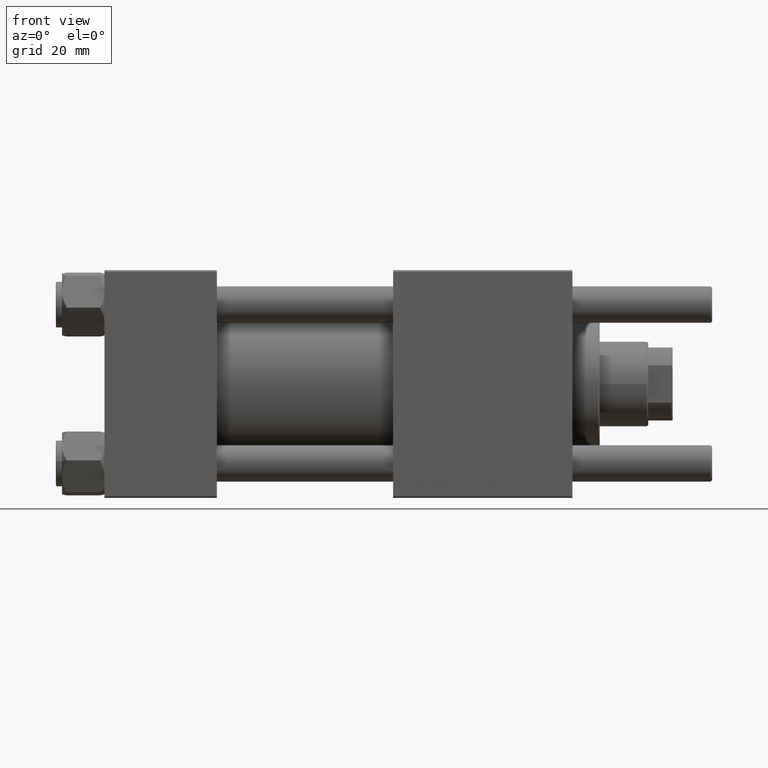
[diagram: clean part render]
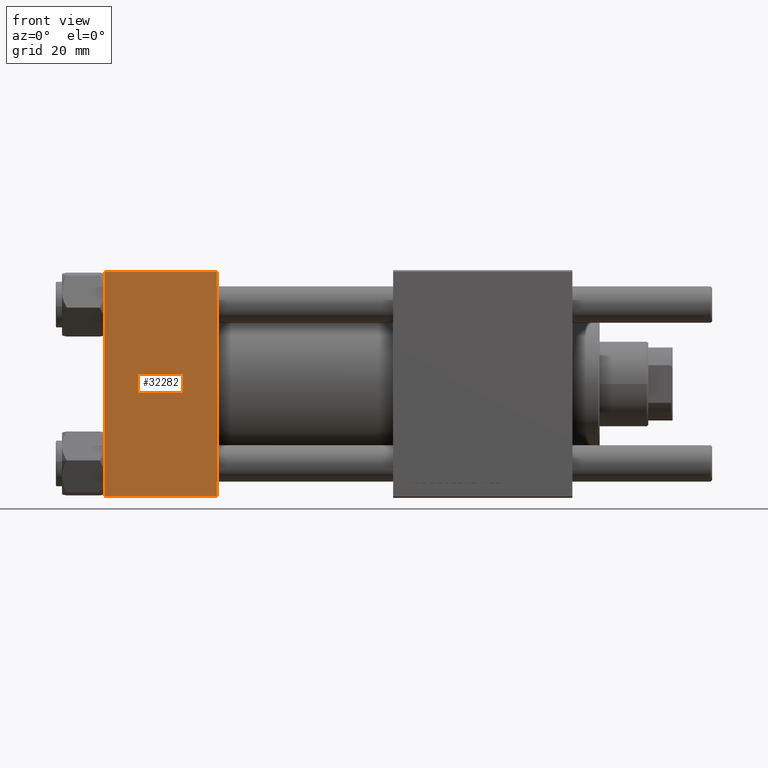
[diagram: same view with one face highlighted and labeled with its STEP entity id]
A machine part, front view. The second image highlights one B-rep face of the part: STEP entity #32282.
In plain terms, the highlighted planar face has unit normal (0, 1, 0).
Its self-contained STEP definition (entity closure, byte-faithful):
#380 = LINE ( 'NONE', #31969, #13864 ) ;
#3413 = VECTOR ( 'NONE', #16341, 1000.000000000000000 ) ;
#4068 = EDGE_CURVE ( 'NONE', #24981, #16358, #6857, .T. ) ;
#5426 = VECTOR ( 'NONE', #26121, 1000.000000000000000 ) ;
#5533 = DIRECTION ( 'NONE',  ( 0.000000000000000000, 9.251858538542971581E-17, -1.000000000000000000 ) ) ;
#6571 = PLANE ( 'NONE',  #43467 ) ;
#6857 = LINE ( 'NONE', #24975, #3413 ) ;
#6870 = DIRECTION ( 'NONE',  ( 0.000000000000000000, 9.251858538542971581E-17, -1.000000000000000000 ) ) ;
#8035 = ORIENTED_EDGE ( 'NONE', *, *, #19327, .T. ) ;
#9450 = ORIENTED_EDGE ( 'NONE', *, *, #4068, .T. ) ;
#12366 = CARTESIAN_POINT ( 'NONE',  ( 37.00000000000000000, -37.50000000000000711, 36.99999999999999289 ) ) ;
#13864 = VECTOR ( 'NONE', #5533, 1000.000000000000000 ) ;
#15196 = DIRECTION ( 'NONE',  ( 0.000000000000000000, -9.251858538542971581E-17, 1.000000000000000000 ) ) ;
#15507 = LINE ( 'NONE', #37070, #23989 ) ;
#16341 = DIRECTION ( 'NONE',  ( -1.000000000000000000, 0.000000000000000000, 0.000000000000000000 ) ) ;
#16358 = VERTEX_POINT ( 'NONE', #49460 ) ;
#19327 = EDGE_CURVE ( 'NONE', #16358, #38262, #380, .T. ) ;
#21006 = EDGE_CURVE ( 'NONE', #24981, #53490, #15507, .T. ) ;
#23989 = VECTOR ( 'NONE', #6870, 1000.000000000000000 ) ;
#24975 = CARTESIAN_POINT ( 'NONE',  ( 37.00000000000000000, -37.50000000000000711, 36.99999999999999289 ) ) ;
#24981 = VERTEX_POINT ( 'NONE', #12366 ) ;
#26121 = DIRECTION ( 'NONE',  ( 1.000000000000000000, 0.000000000000000000, 0.000000000000000000 ) ) ;
#28135 = DIRECTION ( 'NONE',  ( -0.000000000000000000, 1.000000000000000000, 9.251858538542971581E-17 ) ) ;
#28424 = CARTESIAN_POINT ( 'NONE',  ( 37.00000000000000000, -37.50000000000000711, 37.49999999999999289 ) ) ;
#31969 = CARTESIAN_POINT ( 'NONE',  ( 0.000000000000000000, -37.50000000000000711, 37.49999999999999289 ) ) ;
#32282 = ADVANCED_FACE ( 'NONE', ( #40525 ), #6571, .F. ) ;
#37070 = CARTESIAN_POINT ( 'NONE',  ( 37.00000000000000000, -37.50000000000000711, 37.49999999999999289 ) ) ;
#37195 = CARTESIAN_POINT ( 'NONE',  ( 37.00000000000000000, -37.50000000000000000, -37.00000000000003553 ) ) ;
#38262 = VERTEX_POINT ( 'NONE', #52035 ) ;
#40525 = FACE_OUTER_BOUND ( 'NONE', #41040, .T. ) ;
#41040 = EDGE_LOOP ( 'NONE', ( #8035, #43680, #46778, #9450 ) ) ;
#43467 = AXIS2_PLACEMENT_3D ( 'NONE', #28424, #28135, #15196 ) ;
#43680 = ORIENTED_EDGE ( 'NONE', *, *, #45045, .T. ) ;
#45045 = EDGE_CURVE ( 'NONE', #38262, #53490, #56625, .T. ) ;
#46778 = ORIENTED_EDGE ( 'NONE', *, *, #21006, .F. ) ;
#47979 = CARTESIAN_POINT ( 'NONE',  ( 37.00000000000000000, -37.50000000000000000, -37.00000000000003553 ) ) ;
#49460 = CARTESIAN_POINT ( 'NONE',  ( 0.000000000000000000, -37.50000000000000711, 36.99999999999999289 ) ) ;
#52035 = CARTESIAN_POINT ( 'NONE',  ( 0.000000000000000000, -37.50000000000000000, -37.00000000000003553 ) ) ;
#53490 = VERTEX_POINT ( 'NONE', #37195 ) ;
#56625 = LINE ( 'NONE', #47979, #5426 ) ;